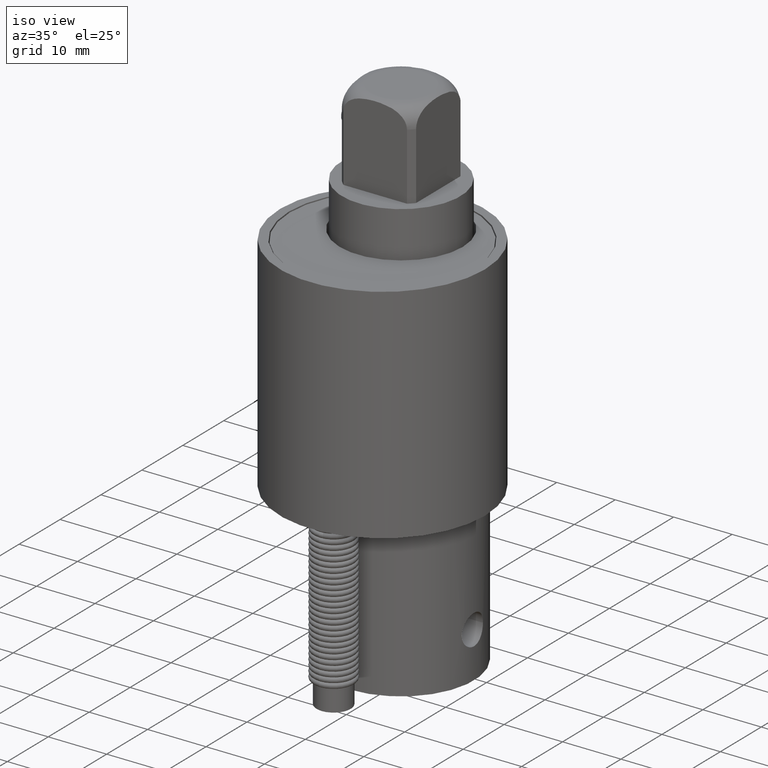
[diagram: clean part render]
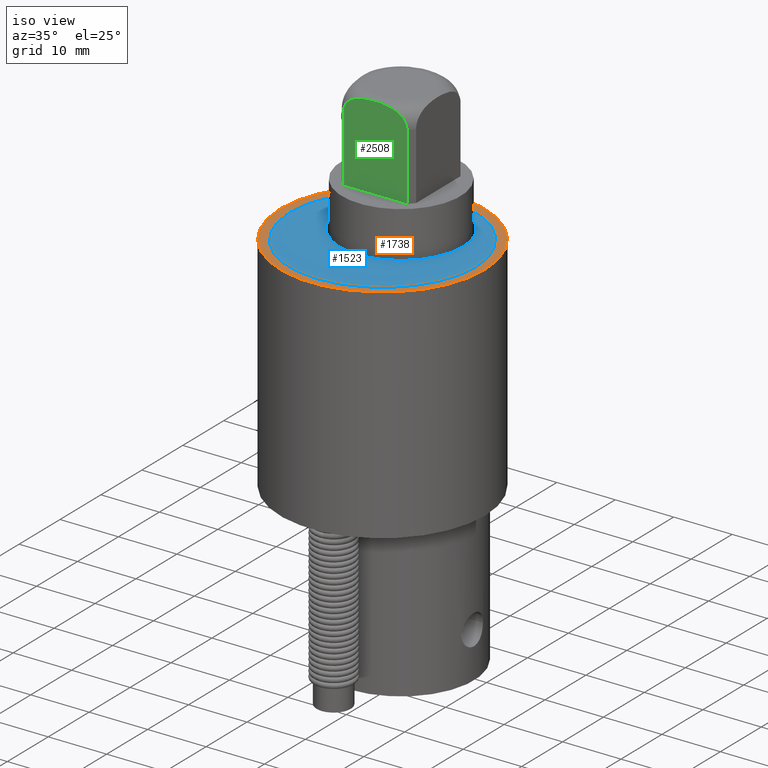
[diagram: same view with three faces highlighted in distinct colors, each labeled with its STEP entity id]
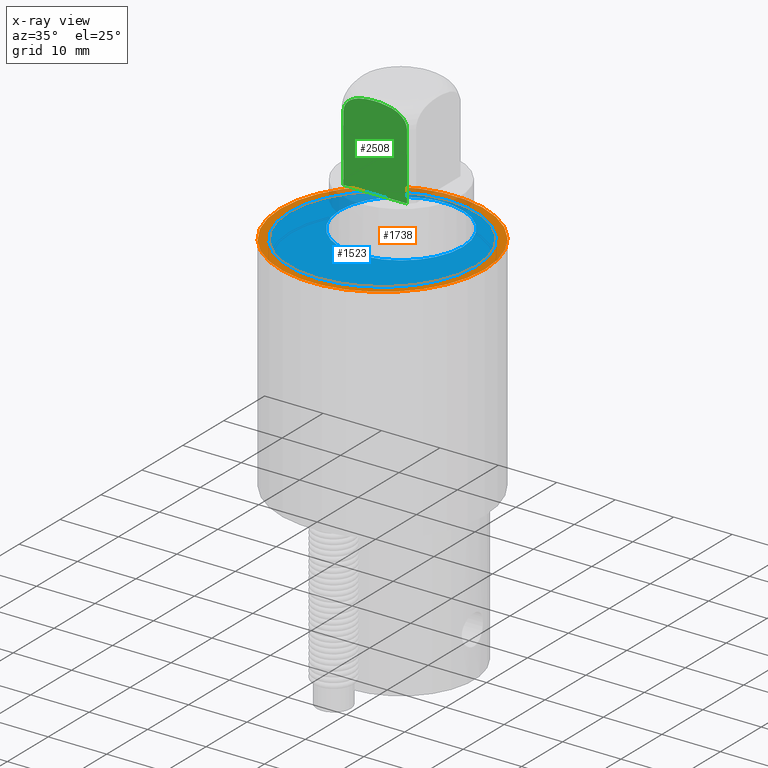
[diagram: x-ray of the same camera — body ghosted, the three highlighted faces saturated]
A machine part, iso view with three faces highlighted in distinct colors.
The next image is the same camera in x-ray (body ghosted, the three faces saturated) — at least one of them is partly hidden behind the body in this view.
Their STEP definitions:

[orange] entity #1738 — the highlighted planar face has unit normal (0, 0, -1).
#1634=CARTESIAN_POINT('',(7.180735023022728,3.588497579026910,0.812431806677400));
#1635=VERTEX_POINT('',#1634);
#1636=CARTESIAN_POINT('',(7.810735023022729,3.588497579026910,0.812431806677400));
#1637=DIRECTION('',(0.0,0.0,-1.0));
#1638=DIRECTION('',(-1.0,0.0,0.0));
#1639=AXIS2_PLACEMENT_3D('',#1636,#1637,#1638);
#1640=CIRCLE('',#1639,0.630000000000000);
#1641=EDGE_CURVE('',#1635,#1635,#1640,.T.);
#1709=CARTESIAN_POINT('',(7.120735023022729,3.588497579026910,0.812431806677400));
#1710=VERTEX_POINT('',#1709);
#1711=CARTESIAN_POINT('',(7.810735023022729,3.588497579026910,0.812431806677400));
#1712=DIRECTION('',(0.0,0.0,-1.0));
#1713=DIRECTION('',(1.0,0.0,0.0));
#1714=AXIS2_PLACEMENT_3D('',#1711,#1712,#1713);
#1715=CIRCLE('',#1714,0.690000000000000);
#1716=EDGE_CURVE('',#1710,#1710,#1715,.T.);
#1727=CARTESIAN_POINT('',(7.810735023022729,3.588497579026910,0.812431806677400));
#1728=DIRECTION('',(0.0,0.0,-1.0));
#1729=DIRECTION('',(1.0,0.0,0.0));
#1730=AXIS2_PLACEMENT_3D('',#1727,#1728,#1729);
#1731=PLANE('',#1730);
#1732=ORIENTED_EDGE('',*,*,#1716,.F.);
#1733=EDGE_LOOP('',(#1732));
#1734=FACE_OUTER_BOUND('',#1733,.T.);
#1735=ORIENTED_EDGE('',*,*,#1641,.T.);
#1736=EDGE_LOOP('',(#1735));
#1737=FACE_BOUND('',#1736,.T.);
#1738=ADVANCED_FACE('',(#1734,#1737),#1731,.F.);

[blue] entity #1523 — the highlighted planar face has unit normal (0, 0, -1).
#1469=CARTESIAN_POINT('',(7.395735023022731,3.768497579026907,0.807431806677404));
#1470=VERTEX_POINT('',#1469);
#1471=CARTESIAN_POINT('',(7.810735023022732,3.768497579026907,0.807431806677404));
#1472=DIRECTION('',(0.0,0.0,-1.0));
#1473=DIRECTION('',(1.0,0.0,0.0));
#1474=AXIS2_PLACEMENT_3D('',#1471,#1472,#1473);
#1475=CIRCLE('',#1474,0.415000000000000);
#1476=EDGE_CURVE('',#1470,#1470,#1475,.T.);
#1489=CARTESIAN_POINT('',(7.185735023022731,3.588497579026907,0.807431806677404));
#1490=VERTEX_POINT('',#1489);
#1491=CARTESIAN_POINT('',(7.810735023022732,3.588497579026907,0.807431806677404));
#1492=DIRECTION('',(0.0,0.0,-1.0));
#1493=DIRECTION('',(1.0,0.0,0.0));
#1494=AXIS2_PLACEMENT_3D('',#1491,#1492,#1493);
#1495=CIRCLE('',#1494,0.625000000000000);
#1496=EDGE_CURVE('',#1490,#1490,#1495,.T.);
#1512=CARTESIAN_POINT('',(7.810735023022732,3.588497579026907,0.807431806677404));
#1513=DIRECTION('',(0.0,0.0,-1.0));
#1514=DIRECTION('',(1.0,0.0,0.0));
#1515=AXIS2_PLACEMENT_3D('',#1512,#1513,#1514);
#1516=PLANE('',#1515);
#1517=ORIENTED_EDGE('',*,*,#1496,.F.);
#1518=EDGE_LOOP('',(#1517));
#1519=FACE_OUTER_BOUND('',#1518,.T.);
#1520=ORIENTED_EDGE('',*,*,#1476,.T.);
#1521=EDGE_LOOP('',(#1520));
#1522=FACE_BOUND('',#1521,.T.);
#1523=ADVANCED_FACE('',(#1519,#1522),#1516,.F.);

[green] entity #2508 — the highlighted planar face has unit normal (0, 1, 0).
#2402=CARTESIAN_POINT('',(7.596863566301634,3.518497579026912,1.562431806677398));
#2403=VERTEX_POINT('',#2402);
#2411=CARTESIAN_POINT('',(8.024606479743810,3.518497579026912,1.562431806677398));
#2412=VERTEX_POINT('',#2411);
#2413=CARTESIAN_POINT('',(7.596863566301636,3.518497579026912,1.562431806677398));
#2414=CARTESIAN_POINT('',(7.596863566301636,3.518497579026912,1.572304563965431));
#2415=CARTESIAN_POINT('',(7.599157681181292,3.518497579026912,1.583927634189492));
#2416=CARTESIAN_POINT('',(7.606960290711352,3.518497579026912,1.603638031312366));
#2417=CARTESIAN_POINT('',(7.614419930725734,3.518497579026912,1.614998895084245));
#2418=CARTESIAN_POINT('',(7.632663779185487,3.518497579026912,1.634703993599155));
#2419=CARTESIAN_POINT('',(7.647968334481807,3.518497579026912,1.645333285925138));
#2420=CARTESIAN_POINT('',(7.705027273573116,3.518497579026912,1.673602330898902));
#2421=CARTESIAN_POINT('',(7.762585234040306,3.518497579026912,1.678660030444261));
#2422=CARTESIAN_POINT('',(7.858884812005140,3.518497579026912,1.678660030444261));
#2423=CARTESIAN_POINT('',(7.916442772472331,3.518497579026912,1.673602330898902));
#2424=CARTESIAN_POINT('',(7.973501711563637,3.518497579026912,1.645333285925138));
#2425=CARTESIAN_POINT('',(7.988806266859959,3.518497579026912,1.634703993599155));
#2426=CARTESIAN_POINT('',(8.007050115319711,3.518497579026912,1.614998895084245));
#2427=CARTESIAN_POINT('',(8.014509755334093,3.518497579026912,1.603638031312366));
#2428=CARTESIAN_POINT('',(8.022312364864153,3.518497579026912,1.583927634189492));
#2429=CARTESIAN_POINT('',(8.024606479743810,3.518497579026912,1.572304563965431));
#2430=CARTESIAN_POINT('',(8.024606479743810,3.518497579026912,1.562431806677398));
#2431=B_SPLINE_CURVE_WITH_KNOTS('',3,(#2413,#2414,#2415,#2416,#2417,#2418,#2419,#2420,#2421,#2422,#2423,#2424,#2425,#2426,#2427,#2428,#2429,#2430),.UNSPECIFIED.,.F.,.U.,(4,2,2,2,2,2,2,2,4),(0.646758090530697,0.721988501065512,0.808291391664055,0.926614789015376,1.293516181061392,1.660417573107408,1.778740970458730,1.865043861057272,1.940274271592087),.UNSPECIFIED.);
#2432=EDGE_CURVE('',#2403,#2412,#2431,.T.);
#2478=CARTESIAN_POINT('',(8.162102644301418,3.518497579026912,1.687431806677397));
#2479=DIRECTION('',(0.0,1.0,0.0));
#2480=DIRECTION('',(1.0,0.0,0.0));
#2481=AXIS2_PLACEMENT_3D('',#2478,#2479,#2480);
#2482=PLANE('',#2481);
#2483=CARTESIAN_POINT('',(7.596863566301636,3.518497579026912,1.112431806677397));
#2484=VERTEX_POINT('',#2483);
#2485=CARTESIAN_POINT('',(7.596863566301636,3.518497579026912,1.112431806677397));
#2486=DIRECTION('',(0.0,0.0,1.0));
#2487=VECTOR('',#2486,0.450000000000000);
#2488=LINE('',#2485,#2487);
#2489=EDGE_CURVE('',#2484,#2403,#2488,.T.);
#2490=ORIENTED_EDGE('',*,*,#2489,.F.);
#2491=CARTESIAN_POINT('',(8.024606479743810,3.518497579026912,1.112431806677397));
#2492=VERTEX_POINT('',#2491);
#2493=CARTESIAN_POINT('',(8.024606479743811,3.518497579026912,1.112431806677397));
#2494=DIRECTION('',(-1.0,0.0,0.0));
#2495=VECTOR('',#2494,0.427742913442176);
#2496=LINE('',#2493,#2495);
#2497=EDGE_CURVE('',#2492,#2484,#2496,.T.);
#2498=ORIENTED_EDGE('',*,*,#2497,.F.);
#2499=CARTESIAN_POINT('',(8.024606479743810,3.518497579026912,1.562431806677398));
#2500=DIRECTION('',(0.0,0.0,-1.0));
#2501=VECTOR('',#2500,0.450000000000000);
#2502=LINE('',#2499,#2501);
#2503=EDGE_CURVE('',#2412,#2492,#2502,.T.);
#2504=ORIENTED_EDGE('',*,*,#2503,.F.);
#2505=ORIENTED_EDGE('',*,*,#2432,.F.);
#2506=EDGE_LOOP('',(#2490,#2498,#2504,#2505));
#2507=FACE_OUTER_BOUND('',#2506,.T.);
#2508=ADVANCED_FACE('',(#2507),#2482,.F.);